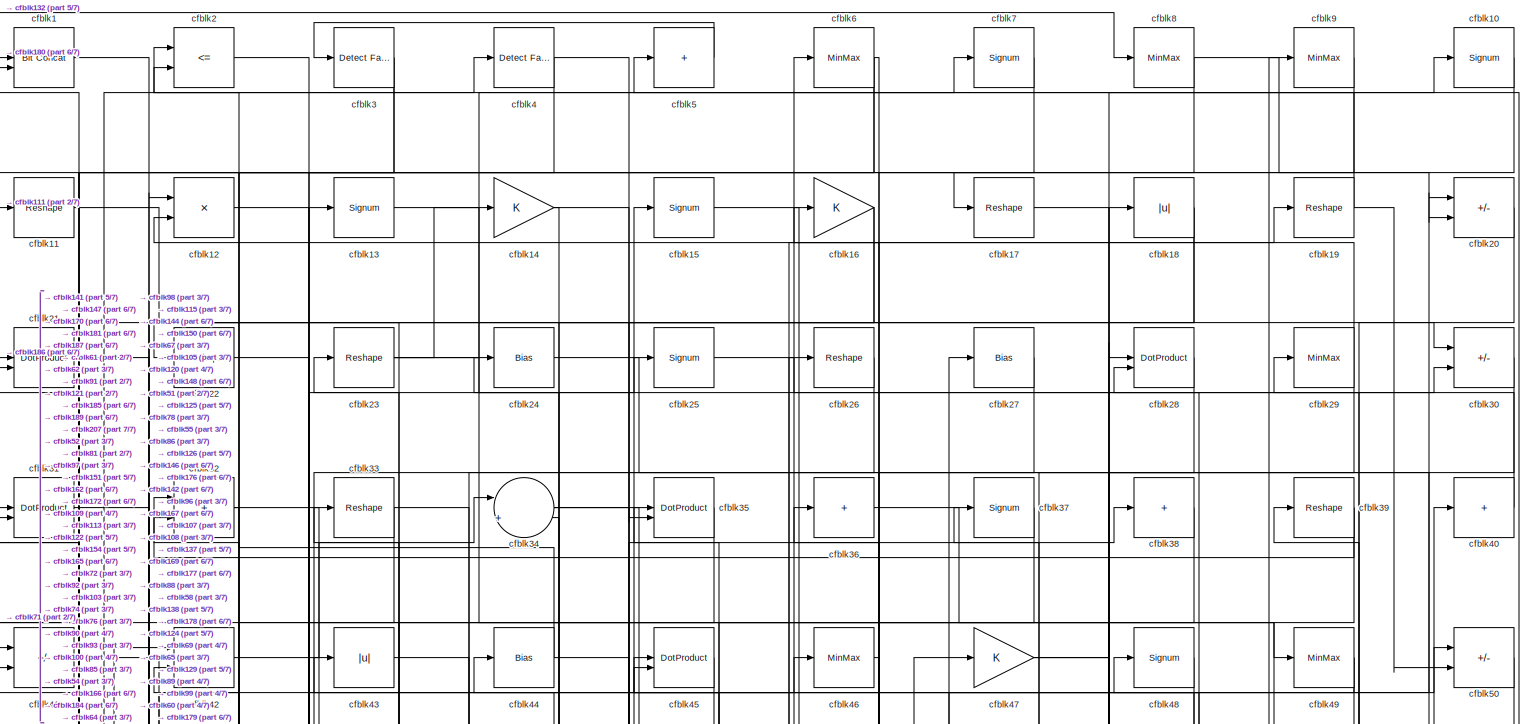
[diagram: root canvas - part 1/7, full width, top band]
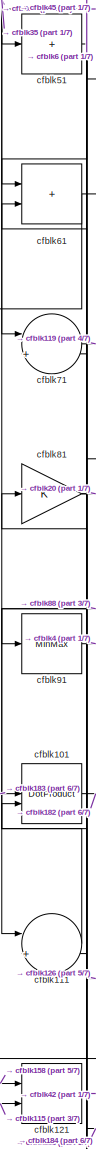
[diagram: root canvas - part 2/7, middle left region]
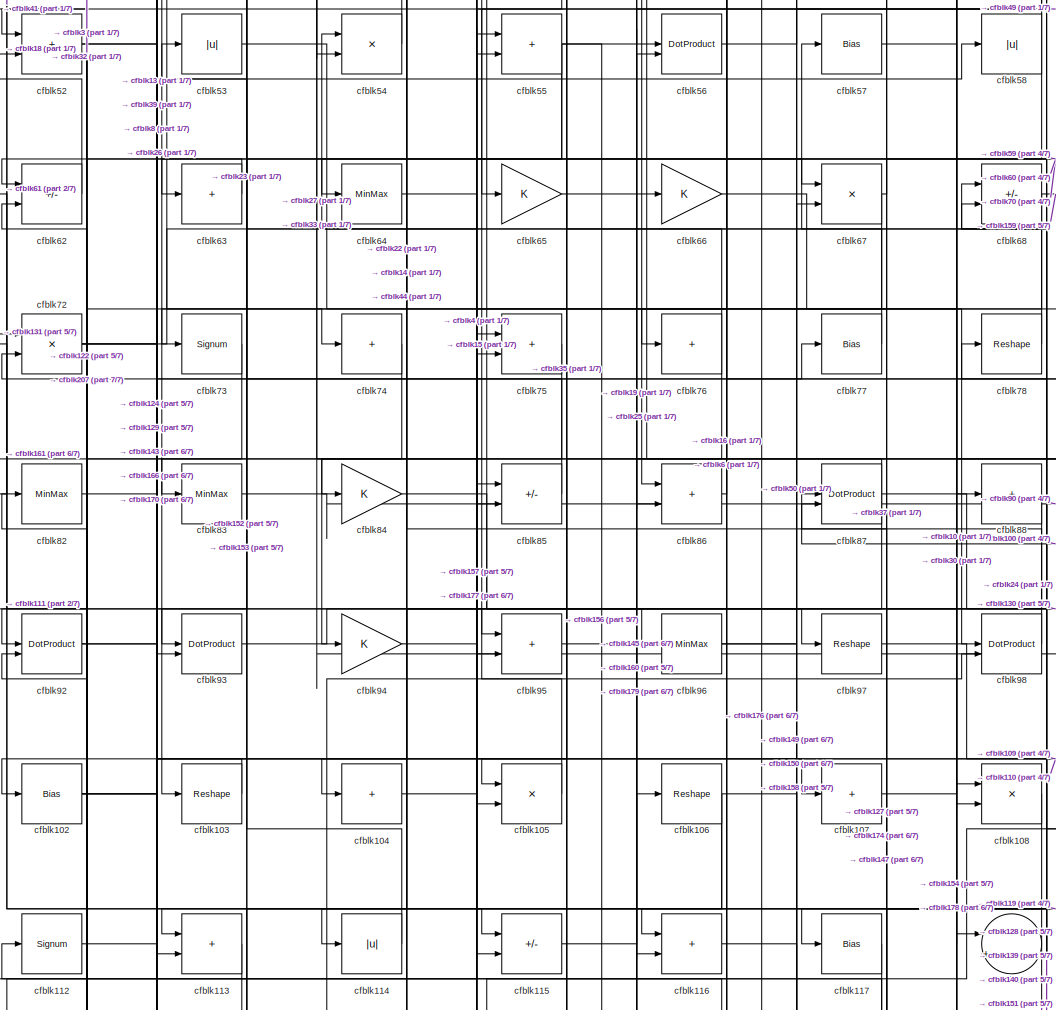
[diagram: root canvas - part 3/7, central region]
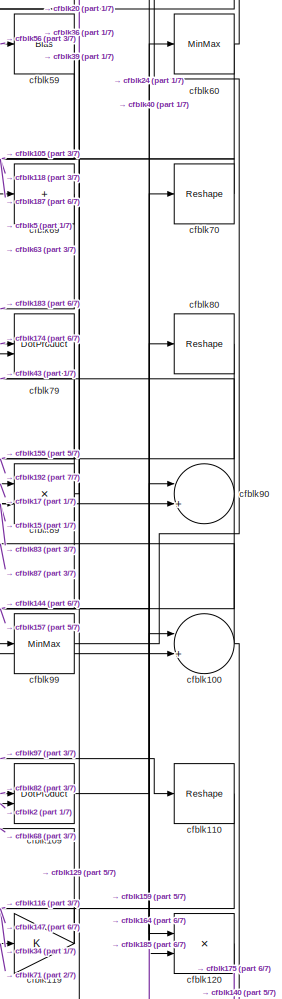
[diagram: root canvas - part 4/7, middle right region]
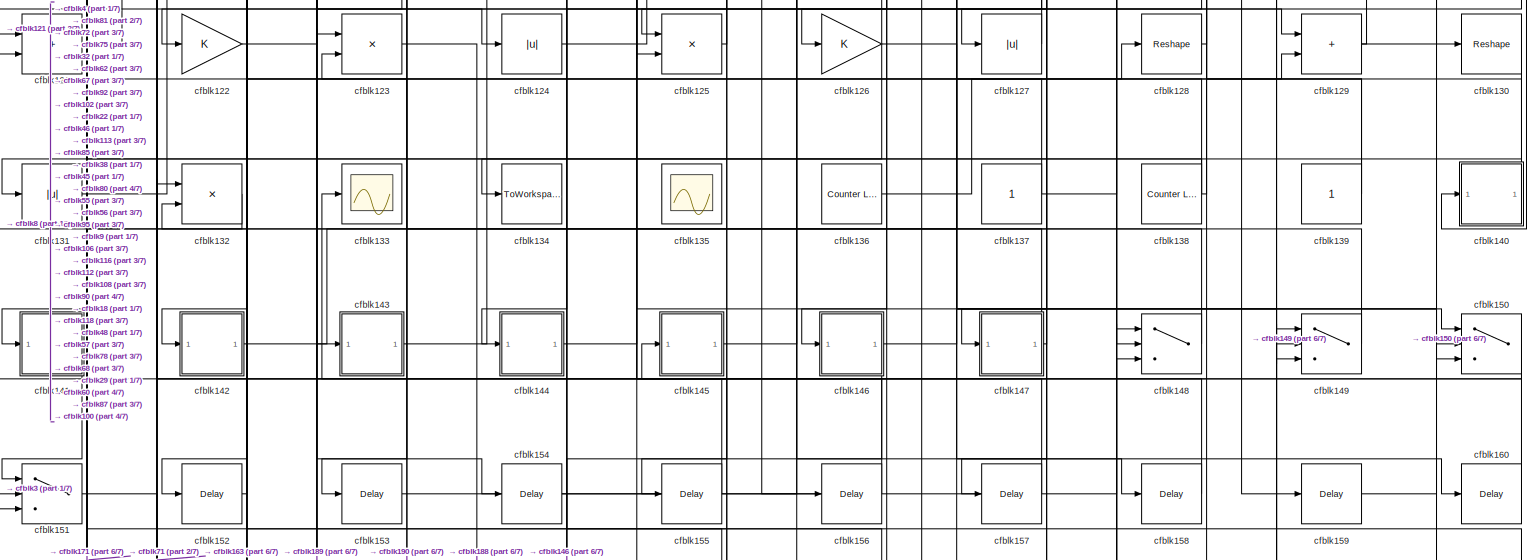
[diagram: root canvas - part 5/7, full width, bottom band]
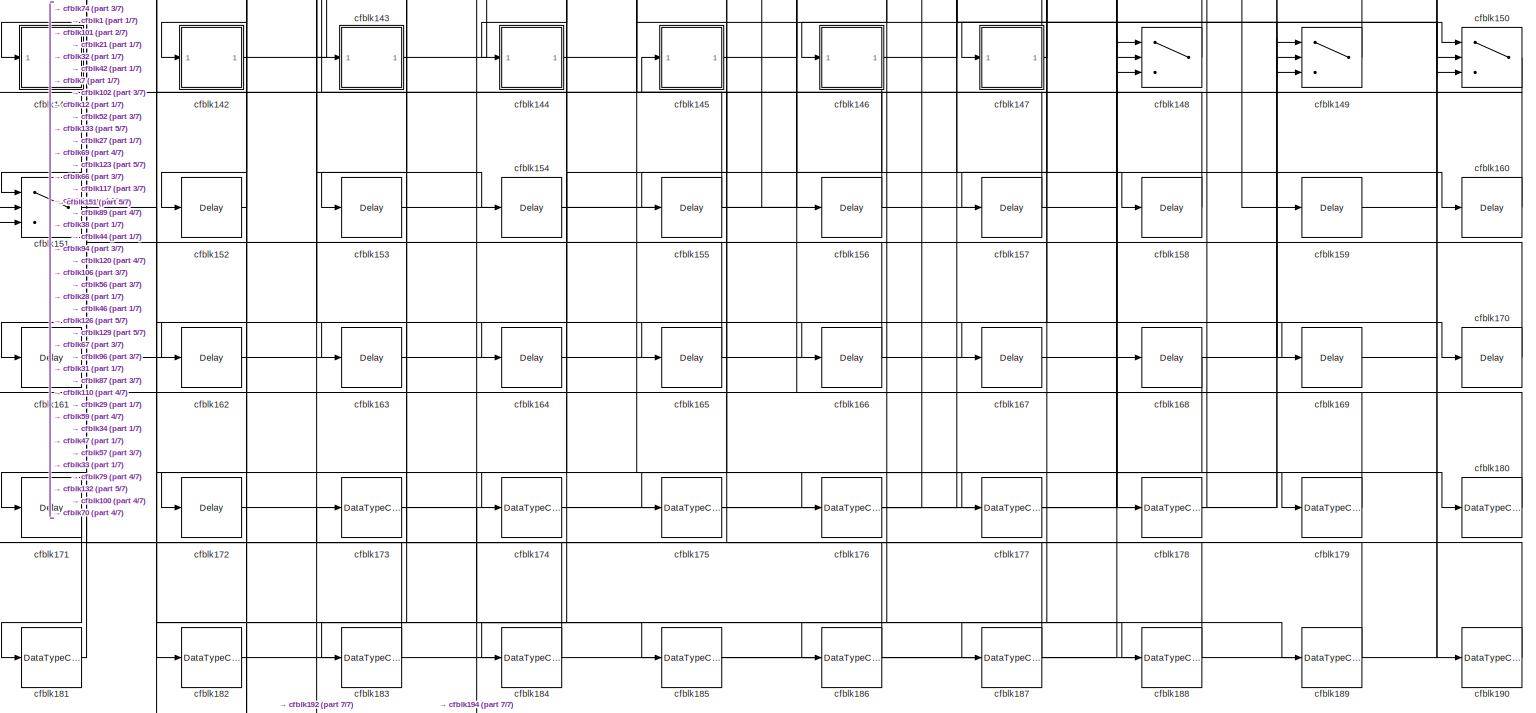
[diagram: root canvas - part 6/7, full width, bottom band]
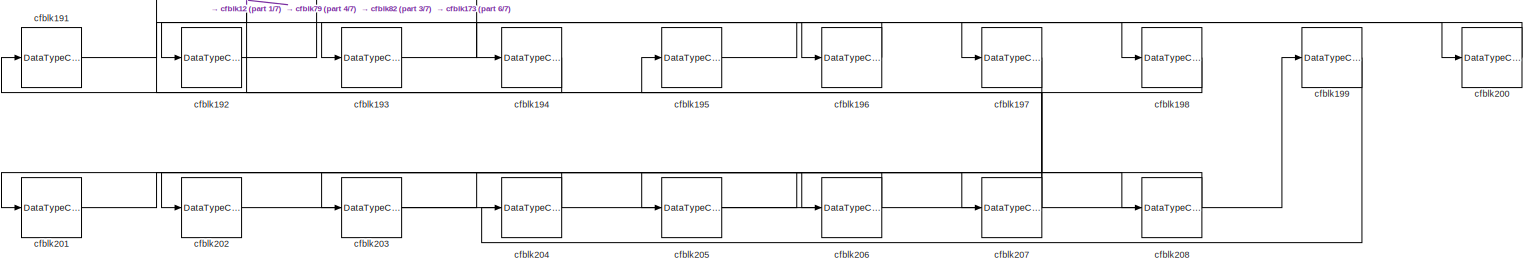
[diagram: root canvas - part 7/7, full width, bottom band]
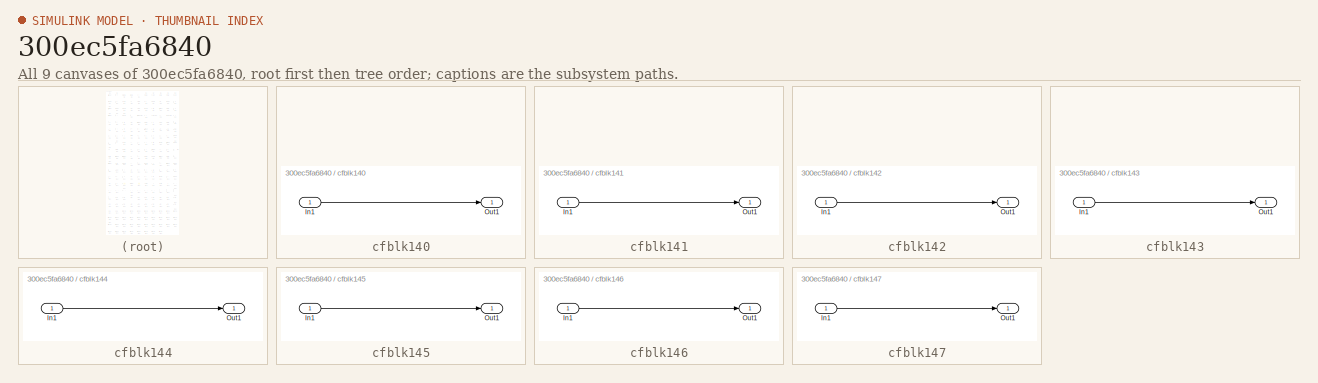
[diagram: thumbnail index - all 9 canvases of the model, root first then tree order]
MODEL slx_300ec5fa6840
KIND model
CONFIG AbsTol = auto
CONFIG EnableMultiTasking = off
CONFIG FixedStep = auto
CONFIG MaxStep = auto
CONFIG MinStep = auto
CONFIG RelTol = 1e-3
CONFIG SampleTimeConstraint = Unconstrained
CONFIG SolverName = VariableStepAuto
CONFIG StartTime = 0.0
CONFIG StopTime = 10.0
BLOCK [Reference] cfblk1  REF=hdlsllib/Logic and Bit
Operations/Bit Concat
  SourceBlock = hdlsllib/Logic and Bit\nOperations/Bit Concat
  SourceType = Bit Concat
BLOCK [Signum] cfblk10
BLOCK [Sum] cfblk100
  Inputs = |++
BLOCK [DotProduct] cfblk101
  OutDataTypeStr = Inherit: Inherit via internal rule
BLOCK [Bias] cfblk102
  Bias = 0.0
  SaturateOnIntegerOverflow = off
BLOCK [Reshape] cfblk103
BLOCK [Sum] cfblk104
  IconShape = rectangular
  Inputs = +
BLOCK [Product] cfblk105
  Inputs = */
  RndMeth = Zero
  SaturateOnIntegerOverflow = on
BLOCK [Reshape] cfblk106
BLOCK [Sum] cfblk107
  IconShape = rectangular
  Inputs = +
BLOCK [Product] cfblk108
  Inputs = */
  RndMeth = Zero
  SaturateOnIntegerOverflow = on
BLOCK [DotProduct] cfblk109
  OutDataTypeStr = Inherit: Inherit via internal rule
BLOCK [Reshape] cfblk11
BLOCK [Reshape] cfblk110
BLOCK [Sum] cfblk111
  Inputs = |++
BLOCK [Signum] cfblk112
BLOCK [Sum] cfblk113
  IconShape = rectangular
BLOCK [Abs] cfblk114
  SaturateOnIntegerOverflow = off
BLOCK [Sum] cfblk115
  IconShape = rectangular
  Inputs = +-
BLOCK [Sum] cfblk116
  IconShape = rectangular
BLOCK [Bias] cfblk117
  Bias = 0.0
  SaturateOnIntegerOverflow = off
BLOCK [Sum] cfblk118
  Inputs = |++
BLOCK [Gain] cfblk119
BLOCK [Product] cfblk12
  Inputs = */
  RndMeth = Zero
  SaturateOnIntegerOverflow = on
BLOCK [Product] cfblk120
  Inputs = */
  RndMeth = Zero
  SaturateOnIntegerOverflow = on
BLOCK [Sum] cfblk121
  IconShape = rectangular
BLOCK [Gain] cfblk122
BLOCK [Product] cfblk123
  Inputs = */
  RndMeth = Zero
  SaturateOnIntegerOverflow = on
BLOCK [Abs] cfblk124
  SaturateOnIntegerOverflow = off
BLOCK [Product] cfblk125
  Inputs = */
  RndMeth = Zero
  SaturateOnIntegerOverflow = on
BLOCK [Gain] cfblk126
BLOCK [Abs] cfblk127
  SaturateOnIntegerOverflow = off
BLOCK [Reshape] cfblk128
BLOCK [Sum] cfblk129
  IconShape = rectangular
BLOCK [Signum] cfblk13
BLOCK [Reshape] cfblk130
BLOCK [Abs] cfblk131
  SaturateOnIntegerOverflow = off
BLOCK [Product] cfblk132
  Inputs = */
  RndMeth = Zero
  SaturateOnIntegerOverflow = on
BLOCK [Scope] cfblk133
  Floating = off
  NumInputPorts = 1
  ScopeSpecificationString = Simulink.scopes.TimeScopeBlockCfg('CurrentConfiguration', extmgr.ConfigurationSet(extmgr.Configuration('Core','General UI',true),extmgr.Configuration('Core','Source UI',true),extmgr.Configuration('Sources','WiredSimulink',true,'DataLoggingVariableName','ScopeData2','DataLoggingSaveFormat','Array','DataLoggingLimitDataPoints',true,'DataLoggingDecimation','1'),extmgr.Configuration('Visuals','Time Do...<+868ch>
BLOCK [ToWorkspace] cfblk134
  MaxDataPoints = inf
  SampleTime = -1
  SaveFormat = Timeseries
  VariableName = simout
BLOCK [Scope] cfblk135
  Floating = on
  NumInputPorts = 1
  ScopeSpecificationString = Simulink.scopes.TimeScopeBlockCfg('CurrentConfiguration', extmgr.ConfigurationSet(extmgr.Configuration('Core','General UI',true,'FigureColor',[0.156862745098039 0.156862745098039 0.156862745098039]),extmgr.Configuration('Core','Source UI',true),extmgr.Configuration('Sources','WiredSimulink',true,'DataLoggingVariableName','ScopeData1','DataLoggingSaveFormat','StructureWithTime','DataLoggingLimitDat...<+2713ch>
BLOCK [Reference] cfblk136  REF=hdlsllib/Sources/Counter
Limited
  SourceBlock = hdlsllib/Sources/Counter\nLimited
  SourceType = Counter Limited
BLOCK [Constant] cfblk137
  SampleTime = -1
BLOCK [Reference] cfblk138  REF=hdlsllib/Sources/Counter
Limited
  SourceBlock = hdlsllib/Sources/Counter\nLimited
  SourceType = Counter Limited
BLOCK [Constant] cfblk139
  SampleTime = -1
BLOCK [Gain] cfblk14
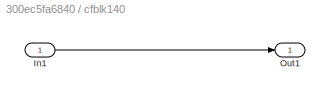
BLOCK [SubSystem] cfblk140
  LibrarySourceBlock = hdlsllib/Ports &\nSubsystems/Subsystem
BLOCK [Inport] cfblk140/In1
BLOCK [Outport] cfblk140/Out1
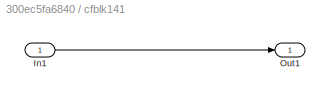
BLOCK [SubSystem] cfblk141
  LibrarySourceBlock = hdlsllib/Ports &\nSubsystems/Subsystem
BLOCK [Inport] cfblk141/In1
BLOCK [Outport] cfblk141/Out1
BLOCK [SubSystem] cfblk142
  LibrarySourceBlock = hdlsllib/Ports &\nSubsystems/Subsystem
BLOCK [Inport] cfblk142/In1
BLOCK [Outport] cfblk142/Out1
BLOCK [SubSystem] cfblk143
  LibrarySourceBlock = hdlsllib/Ports &\nSubsystems/Subsystem
BLOCK [Inport] cfblk143/In1
BLOCK [Outport] cfblk143/Out1
BLOCK [SubSystem] cfblk144
  LibrarySourceBlock = hdlsllib/Ports &\nSubsystems/Subsystem
BLOCK [Inport] cfblk144/In1
BLOCK [Outport] cfblk144/Out1
BLOCK [SubSystem] cfblk145
  LibrarySourceBlock = hdlsllib/Ports &\nSubsystems/Subsystem
BLOCK [Inport] cfblk145/In1
BLOCK [Outport] cfblk145/Out1
BLOCK [SubSystem] cfblk146
  LibrarySourceBlock = hdlsllib/Ports &\nSubsystems/Subsystem
BLOCK [Inport] cfblk146/In1
BLOCK [Outport] cfblk146/Out1
BLOCK [SubSystem] cfblk147
  LibrarySourceBlock = hdlsllib/Ports &\nSubsystems/Subsystem
BLOCK [Inport] cfblk147/In1
BLOCK [Outport] cfblk147/Out1
BLOCK [Switch] cfblk148
  InputSameDT = off
  SaturateOnIntegerOverflow = off
BLOCK [Switch] cfblk149
  InputSameDT = off
  SaturateOnIntegerOverflow = off
BLOCK [Signum] cfblk15
BLOCK [Switch] cfblk150
  InputSameDT = off
  SaturateOnIntegerOverflow = off
BLOCK [Switch] cfblk151
  InputSameDT = off
  SaturateOnIntegerOverflow = off
BLOCK [Delay] cfblk152
  InputPortMap = u0
  SampleTime = 1
BLOCK [Delay] cfblk153
  InputPortMap = u0
  SampleTime = 1
BLOCK [Delay] cfblk154
  InputPortMap = u0
  SampleTime = 1
BLOCK [Delay] cfblk155
  InputPortMap = u0
  SampleTime = 1
BLOCK [Delay] cfblk156
  InputPortMap = u0
  SampleTime = 1
BLOCK [Delay] cfblk157
  InputPortMap = u0
  SampleTime = 1
BLOCK [Delay] cfblk158
  InputPortMap = u0
  SampleTime = 1
BLOCK [Delay] cfblk159
  InputPortMap = u0
  SampleTime = 1
BLOCK [Gain] cfblk16
BLOCK [Delay] cfblk160
  InputPortMap = u0
  SampleTime = 1
BLOCK [Delay] cfblk161
  InputPortMap = u0
  SampleTime = 1
BLOCK [Delay] cfblk162
  InputPortMap = u0
  SampleTime = 1
BLOCK [Delay] cfblk163
  InputPortMap = u0
  SampleTime = 1
BLOCK [Delay] cfblk164
  InputPortMap = u0
  SampleTime = 1
BLOCK [Delay] cfblk165
  InputPortMap = u0
  SampleTime = 1
BLOCK [Delay] cfblk166
  InputPortMap = u0
  SampleTime = 1
BLOCK [Delay] cfblk167
  InputPortMap = u0
  SampleTime = 1
BLOCK [Delay] cfblk168
  InputPortMap = u0
  SampleTime = 1
BLOCK [Delay] cfblk169
  InputPortMap = u0
  SampleTime = 1
BLOCK [Reshape] cfblk17
BLOCK [Delay] cfblk170
  InputPortMap = u0
  SampleTime = 1
BLOCK [Delay] cfblk171
  InputPortMap = u0
  SampleTime = 1
BLOCK [Delay] cfblk172
  InputPortMap = u0
  SampleTime = 1
BLOCK [DataTypeConversion] cfblk173
  RndMeth = Floor
  SaturateOnIntegerOverflow = off
BLOCK [DataTypeConversion] cfblk174
  OutDataTypeStr = uint8
  RndMeth = Floor
  SaturateOnIntegerOverflow = off
BLOCK [DataTypeConversion] cfblk175
  OutDataTypeStr = uint8
  RndMeth = Floor
  SaturateOnIntegerOverflow = off
BLOCK [DataTypeConversion] cfblk176
  RndMeth = Floor
  SaturateOnIntegerOverflow = off
BLOCK [DataTypeConversion] cfblk177
  OutDataTypeStr = uint8
  RndMeth = Floor
  SaturateOnIntegerOverflow = off
BLOCK [DataTypeConversion] cfblk178
  OutDataTypeStr = uint8
  RndMeth = Floor
  SaturateOnIntegerOverflow = off
BLOCK [DataTypeConversion] cfblk179
  OutDataTypeStr = uint8
  RndMeth = Floor
  SaturateOnIntegerOverflow = off
BLOCK [Abs] cfblk18
  SaturateOnIntegerOverflow = off
BLOCK [DataTypeConversion] cfblk180
  OutDataTypeStr = uint8
  RndMeth = Floor
  SaturateOnIntegerOverflow = off
BLOCK [DataTypeConversion] cfblk181
  OutDataTypeStr = uint8
  RndMeth = Floor
  SaturateOnIntegerOverflow = off
BLOCK [DataTypeConversion] cfblk182
  OutDataTypeStr = uint8
  RndMeth = Floor
  SaturateOnIntegerOverflow = off
BLOCK [DataTypeConversion] cfblk183
  OutDataTypeStr = uint8
  RndMeth = Floor
  SaturateOnIntegerOverflow = off
BLOCK [DataTypeConversion] cfblk184
  OutDataTypeStr = uint8
  RndMeth = Floor
  SaturateOnIntegerOverflow = off
BLOCK [DataTypeConversion] cfblk185
  OutDataTypeStr = uint8
  RndMeth = Floor
  SaturateOnIntegerOverflow = off
BLOCK [DataTypeConversion] cfblk186
  OutDataTypeStr = uint8
  RndMeth = Floor
  SaturateOnIntegerOverflow = off
BLOCK [DataTypeConversion] cfblk187
  OutDataTypeStr = uint8
  RndMeth = Floor
  SaturateOnIntegerOverflow = off
BLOCK [DataTypeConversion] cfblk188
  OutDataTypeStr = uint8
  RndMeth = Floor
  SaturateOnIntegerOverflow = off
BLOCK [DataTypeConversion] cfblk189
  OutDataTypeStr = uint8
  RndMeth = Floor
  SaturateOnIntegerOverflow = off
BLOCK [Reshape] cfblk19
BLOCK [DataTypeConversion] cfblk190
  OutDataTypeStr = uint8
  RndMeth = Floor
  SaturateOnIntegerOverflow = off
BLOCK [DataTypeConversion] cfblk191
  RndMeth = Floor
  SaturateOnIntegerOverflow = off
BLOCK [DataTypeConversion] cfblk192
  OutDataTypeStr = uint8
  RndMeth = Floor
  SaturateOnIntegerOverflow = off
BLOCK [DataTypeConversion] cfblk193
  RndMeth = Floor
  SaturateOnIntegerOverflow = off
BLOCK [DataTypeConversion] cfblk194
  OutDataTypeStr = uint8
  RndMeth = Floor
  SaturateOnIntegerOverflow = off
BLOCK [DataTypeConversion] cfblk195
  RndMeth = Floor
  SaturateOnIntegerOverflow = off
BLOCK [DataTypeConversion] cfblk196
  OutDataTypeStr = uint8
  RndMeth = Floor
  SaturateOnIntegerOverflow = off
BLOCK [DataTypeConversion] cfblk197
  RndMeth = Floor
  SaturateOnIntegerOverflow = off
BLOCK [DataTypeConversion] cfblk198
  OutDataTypeStr = uint8
  RndMeth = Floor
  SaturateOnIntegerOverflow = off
BLOCK [DataTypeConversion] cfblk199
  RndMeth = Floor
  SaturateOnIntegerOverflow = off
BLOCK [RelationalOperator] cfblk2
  InputSameDT = off
  Operator = <=
  OutDataTypeStr = boolean
BLOCK [Sum] cfblk20
  IconShape = rectangular
  Inputs = +-
BLOCK [DataTypeConversion] cfblk200
  OutDataTypeStr = uint8
  RndMeth = Floor
  SaturateOnIntegerOverflow = off
BLOCK [DataTypeConversion] cfblk201
  RndMeth = Floor
  SaturateOnIntegerOverflow = off
BLOCK [DataTypeConversion] cfblk202
  OutDataTypeStr = uint8
  RndMeth = Floor
  SaturateOnIntegerOverflow = off
BLOCK [DataTypeConversion] cfblk203
  RndMeth = Floor
  SaturateOnIntegerOverflow = off
BLOCK [DataTypeConversion] cfblk204
  OutDataTypeStr = uint8
  RndMeth = Floor
  SaturateOnIntegerOverflow = off
BLOCK [DataTypeConversion] cfblk205
  RndMeth = Floor
  SaturateOnIntegerOverflow = off
BLOCK [DataTypeConversion] cfblk206
  OutDataTypeStr = uint8
  RndMeth = Floor
  SaturateOnIntegerOverflow = off
BLOCK [DataTypeConversion] cfblk207
  RndMeth = Floor
  SaturateOnIntegerOverflow = off
BLOCK [DataTypeConversion] cfblk208
  OutDataTypeStr = uint8
  RndMeth = Floor
  SaturateOnIntegerOverflow = off
BLOCK [DotProduct] cfblk21
  OutDataTypeStr = Inherit: Inherit via internal rule
BLOCK [Reshape] cfblk22
BLOCK [Reshape] cfblk23
BLOCK [Bias] cfblk24
  Bias = 0.0
  SaturateOnIntegerOverflow = off
BLOCK [Signum] cfblk25
BLOCK [Reshape] cfblk26
BLOCK [Bias] cfblk27
  Bias = 0.0
  SaturateOnIntegerOverflow = off
BLOCK [DotProduct] cfblk28
  OutDataTypeStr = Inherit: Inherit via internal rule
BLOCK [MinMax] cfblk29
BLOCK [Reference] cfblk3  REF=hdlsllib/Logic and Bit
Operations/Detect Fall
Nonpositive
  SourceBlock = hdlsllib/Logic and Bit\nOperations/Detect Fall\nNonpositive
  SourceType = Detect Fall Nonpositive
BLOCK [Sum] cfblk30
  IconShape = rectangular
  Inputs = +-
BLOCK [DotProduct] cfblk31
  OutDataTypeStr = Inherit: Inherit via internal rule
BLOCK [Sum] cfblk32
  IconShape = rectangular
BLOCK [Reshape] cfblk33
BLOCK [Sum] cfblk34
  Inputs = |++
BLOCK [DotProduct] cfblk35
  OutDataTypeStr = Inherit: Inherit via internal rule
BLOCK [Sum] cfblk36
  IconShape = rectangular
  Inputs = +
BLOCK [Signum] cfblk37
BLOCK [Sum] cfblk38
  IconShape = rectangular
  Inputs = +
BLOCK [Reshape] cfblk39
BLOCK [Reference] cfblk4  REF=hdlsllib/Logic and Bit
Operations/Detect Fall
Nonpositive
  SourceBlock = hdlsllib/Logic and Bit\nOperations/Detect Fall\nNonpositive
  SourceType = Detect Fall Nonpositive
BLOCK [Sum] cfblk40
  IconShape = rectangular
  Inputs = +
BLOCK [Sum] cfblk41
  IconShape = rectangular
  Inputs = +-
BLOCK [Product] cfblk42
  Inputs = */
  RndMeth = Zero
  SaturateOnIntegerOverflow = on
BLOCK [Abs] cfblk43
  SaturateOnIntegerOverflow = off
BLOCK [Bias] cfblk44
  Bias = 0.0
  SaturateOnIntegerOverflow = off
BLOCK [DotProduct] cfblk45
  OutDataTypeStr = Inherit: Inherit via internal rule
BLOCK [MinMax] cfblk46
BLOCK [Gain] cfblk47
BLOCK [Signum] cfblk48
BLOCK [MinMax] cfblk49
BLOCK [Sum] cfblk5
  IconShape = rectangular
  Inputs = +
BLOCK [Sum] cfblk50
  IconShape = rectangular
  Inputs = +-
BLOCK [Sum] cfblk51
  IconShape = rectangular
  Inputs = +
BLOCK [Sum] cfblk52
  IconShape = rectangular
BLOCK [Abs] cfblk53
  SaturateOnIntegerOverflow = off
BLOCK [Product] cfblk54
  Inputs = */
  RndMeth = Zero
  SaturateOnIntegerOverflow = on
BLOCK [Sum] cfblk55
  IconShape = rectangular
BLOCK [DotProduct] cfblk56
  OutDataTypeStr = Inherit: Inherit via internal rule
BLOCK [Bias] cfblk57
  Bias = 0.0
  SaturateOnIntegerOverflow = off
BLOCK [Abs] cfblk58
  SaturateOnIntegerOverflow = off
BLOCK [Bias] cfblk59
  Bias = 0.0
  SaturateOnIntegerOverflow = off
BLOCK [MinMax] cfblk6
BLOCK [MinMax] cfblk60
BLOCK [Sum] cfblk61
  IconShape = rectangular
BLOCK [Sum] cfblk62
  IconShape = rectangular
  Inputs = +-
BLOCK [Sum] cfblk63
  IconShape = rectangular
  Inputs = +
BLOCK [MinMax] cfblk64
BLOCK [Gain] cfblk65
BLOCK [Gain] cfblk66
BLOCK [Product] cfblk67
  Inputs = */
  RndMeth = Zero
  SaturateOnIntegerOverflow = on
BLOCK [Sum] cfblk68
  IconShape = rectangular
  Inputs = +-
BLOCK [Sum] cfblk69
  IconShape = rectangular
  Inputs = +
BLOCK [Signum] cfblk7
BLOCK [Reshape] cfblk70
BLOCK [Sum] cfblk71
  Inputs = |++
BLOCK [Product] cfblk72
  Inputs = */
  RndMeth = Zero
  SaturateOnIntegerOverflow = on
BLOCK [Signum] cfblk73
BLOCK [Sum] cfblk74
  IconShape = rectangular
  Inputs = +
BLOCK [Sum] cfblk75
  IconShape = rectangular
BLOCK [Sum] cfblk76
  IconShape = rectangular
  Inputs = +
BLOCK [Bias] cfblk77
  Bias = 0.0
  SaturateOnIntegerOverflow = off
BLOCK [Reshape] cfblk78
BLOCK [DotProduct] cfblk79
  OutDataTypeStr = Inherit: Inherit via internal rule
BLOCK [MinMax] cfblk8
BLOCK [Reshape] cfblk80
BLOCK [Gain] cfblk81
BLOCK [MinMax] cfblk82
BLOCK [MinMax] cfblk83
BLOCK [Gain] cfblk84
BLOCK [Sum] cfblk85
  IconShape = rectangular
  Inputs = +-
BLOCK [Sum] cfblk86
  IconShape = rectangular
BLOCK [DotProduct] cfblk87
  OutDataTypeStr = Inherit: Inherit via internal rule
BLOCK [Sum] cfblk88
  IconShape = rectangular
  Inputs = +
BLOCK [Product] cfblk89
  Inputs = */
  RndMeth = Zero
  SaturateOnIntegerOverflow = on
BLOCK [MinMax] cfblk9
BLOCK [Sum] cfblk90
  Inputs = |++
BLOCK [MinMax] cfblk91
BLOCK [DotProduct] cfblk92
  OutDataTypeStr = Inherit: Inherit via internal rule
BLOCK [DotProduct] cfblk93
  OutDataTypeStr = Inherit: Inherit via internal rule
BLOCK [Gain] cfblk94
BLOCK [Sum] cfblk95
  IconShape = rectangular
BLOCK [MinMax] cfblk96
BLOCK [Reshape] cfblk97
BLOCK [DotProduct] cfblk98
  OutDataTypeStr = Inherit: Inherit via internal rule
BLOCK [MinMax] cfblk99
NET cfblk100:1 -> cfblk140:1, cfblk87:2
LINE cfblk101:1 -> cfblk182:1
NET cfblk102:1 -> cfblk124:1, cfblk129:1, cfblk170:1
LINE cfblk103:1 -> cfblk102:1
LINE cfblk104:1 -> cfblk75:2
LINE cfblk105:1 -> cfblk15:1
NET cfblk106:1 -> cfblk113:1, cfblk149:3, cfblk153:1
LINE cfblk107:1 -> cfblk10:1
LINE cfblk108:1 -> cfblk127:1
LINE cfblk109:1 -> cfblk80:1
LINE cfblk10:1 -> cfblk17:1
LINE cfblk110:1 -> cfblk147:1
LINE cfblk111:1 -> cfblk11:1
LINE cfblk112:1 -> cfblk77:1
LINE cfblk113:1 -> cfblk152:1
LINE cfblk114:1 -> cfblk53:1
LINE cfblk115:1 -> cfblk98:2
LINE cfblk116:1 -> cfblk158:1
LINE cfblk117:1 -> cfblk174:1
NET cfblk118:1 -> cfblk117:1, cfblk151:3
NET cfblk119:1 -> cfblk116:1, cfblk68:2
LINE cfblk11:1 -> cfblk30:1
LINE cfblk120:1 -> cfblk175:1
LINE cfblk121:1 -> cfblk42:1
LINE cfblk122:1 -> cfblk46:1
LINE cfblk123:1 -> cfblk188:1
LINE cfblk124:1 -> cfblk9:1
LINE cfblk125:1 -> cfblk45:1
NET cfblk126:1 -> cfblk150:1, cfblk171:1, cfblk71:2
LINE cfblk127:1 -> cfblk112:1
LINE cfblk128:1 -> cfblk57:1
NET cfblk129:1 -> cfblk29:1, cfblk60:1
LINE cfblk12:1 -> cfblk165:1
LINE cfblk130:1 -> cfblk131:1
LINE cfblk131:1 -> cfblk75:1
LINE cfblk132:1 -> cfblk8:1
LINE cfblk136:1 -> cfblk128:1
NET cfblk137:1 -> cfblk18:1, cfblk32:1
NET cfblk138:1 -> cfblk134:1, cfblk48:1, cfblk81:1
NET cfblk139:1 -> cfblk68:1, cfblk92:2
LINE cfblk13:1 -> cfblk88:1
LINE cfblk140/In1:1 -> cfblk140/Out1:1
LINE cfblk140:1 -> cfblk78:1
LINE cfblk141/In1:1 -> cfblk141/Out1:1
LINE cfblk141:1 -> cfblk151:1
LINE cfblk142/In1:1 -> cfblk142/Out1:1
LINE cfblk142:1 -> cfblk27:1
LINE cfblk143/In1:1 -> cfblk143/Out1:1
LINE cfblk143:1 -> cfblk66:1
LINE cfblk144/In1:1 -> cfblk144/Out1:1
LINE cfblk144:1 -> cfblk38:1
LINE cfblk145/In1:1 -> cfblk145/Out1:1
LINE cfblk145:1 -> cfblk106:1
LINE cfblk146/In1:1 -> cfblk146/Out1:1
NET cfblk146:1 -> cfblk129:2, cfblk164:1
LINE cfblk147/In1:1 -> cfblk147/Out1:1
NET cfblk147:1 -> cfblk31:1, cfblk87:1
LINE cfblk148:1 -> cfblk33:1
LINE cfblk149:1 -> cfblk132:2
NET cfblk14:1 -> cfblk115:2, cfblk64:1
LINE cfblk150:1 -> cfblk133:1
LINE cfblk151:1 -> cfblk163:1
LINE cfblk152:1 -> cfblk62:2
LINE cfblk153:1 -> cfblk56:2
LINE cfblk154:1 -> cfblk108:1
LINE cfblk155:1 -> cfblk132:1
LINE cfblk156:1 -> cfblk85:1
LINE cfblk157:1 -> cfblk55:1
LINE cfblk158:1 -> cfblk121:1
LINE cfblk159:1 -> cfblk90:1
LINE cfblk15:1 -> cfblk89:2
LINE cfblk160:1 -> cfblk72:1
LINE cfblk161:1 -> cfblk148:1
LINE cfblk162:1 -> cfblk149:2
LINE cfblk163:1 -> cfblk149:1
LINE cfblk164:1 -> cfblk100:1
LINE cfblk165:1 -> cfblk42:2
LINE cfblk166:1 -> cfblk34:2
LINE cfblk167:1 -> cfblk180:1
LINE cfblk168:1 -> cfblk186:1
LINE cfblk169:1 -> cfblk190:1
NET cfblk16:1 -> cfblk184:1, cfblk35:2
LINE cfblk170:1 -> cfblk31:2
LINE cfblk171:1 -> cfblk181:1
LINE cfblk172:1 -> cfblk148:3
LINE cfblk173:1 -> cfblk194:1
LINE cfblk174:1 -> cfblk79:1
LINE cfblk175:1 -> cfblk79:2
NET cfblk176:1 -> cfblk47:1, cfblk67:2
LINE cfblk177:1 -> cfblk28:1
LINE cfblk178:1 -> cfblk28:2
LINE cfblk179:1 -> cfblk56:1
LINE cfblk17:1 -> cfblk89:1
LINE cfblk180:1 -> cfblk1:1
LINE cfblk181:1 -> cfblk1:2
LINE cfblk182:1 -> cfblk168:1
LINE cfblk183:1 -> cfblk101:1
LINE cfblk184:1 -> cfblk101:2
LINE cfblk185:1 -> cfblk70:1
LINE cfblk186:1 -> cfblk21:1
LINE cfblk187:1 -> cfblk21:2
LINE cfblk188:1 -> cfblk145:1
LINE cfblk189:1 -> cfblk123:1
NET cfblk18:1 -> cfblk41:1, cfblk52:2
LINE cfblk190:1 -> cfblk123:2
LINE cfblk191:1 -> cfblk196:1
LINE cfblk192:1 -> cfblk173:1
LINE cfblk193:1 -> cfblk198:1
LINE cfblk194:1 -> cfblk191:1
LINE cfblk195:1 -> cfblk200:1
LINE cfblk196:1 -> cfblk193:1
LINE cfblk197:1 -> cfblk202:1
LINE cfblk198:1 -> cfblk195:1
LINE cfblk199:1 -> cfblk204:1
NET cfblk19:1 -> cfblk2:2, cfblk50:2
LINE cfblk1:1 -> cfblk179:1
LINE cfblk200:1 -> cfblk197:1
LINE cfblk201:1 -> cfblk206:1
LINE cfblk202:1 -> cfblk199:1
LINE cfblk203:1 -> cfblk208:1
LINE cfblk204:1 -> cfblk201:1
LINE cfblk205:1 -> cfblk207:1
LINE cfblk206:1 -> cfblk203:1
NET cfblk207:1 -> cfblk12:1, cfblk82:1
LINE cfblk208:1 -> cfblk205:1
LINE cfblk20:1 -> cfblk99:1
LINE cfblk21:1 -> cfblk185:1
LINE cfblk22:1 -> cfblk154:1
NET cfblk23:1 -> cfblk14:1, cfblk30:2, cfblk7:1
LINE cfblk24:1 -> cfblk120:1
LINE cfblk25:1 -> cfblk86:1
LINE cfblk26:1 -> cfblk103:1
LINE cfblk27:1 -> cfblk54:2
LINE cfblk28:1 -> cfblk176:1
NET cfblk29:1 -> cfblk12:2, cfblk167:1
LINE cfblk2:1 -> cfblk109:2
LINE cfblk30:1 -> cfblk108:2
LINE cfblk31:1 -> cfblk189:1
NET cfblk32:1 -> cfblk162:1, cfblk74:1
NET cfblk33:1 -> cfblk172:1, cfblk85:2
NET cfblk34:1 -> cfblk120:2, cfblk148:2
LINE cfblk35:1 -> cfblk71:1
LINE cfblk36:1 -> cfblk69:1
LINE cfblk37:1 -> cfblk93:1
LINE cfblk38:1 -> cfblk125:1
NET cfblk39:1 -> cfblk32:2, cfblk93:2
NET cfblk3:1 -> cfblk151:2, cfblk52:1
LINE cfblk40:1 -> cfblk6:1
LINE cfblk41:1 -> cfblk97:1
LINE cfblk42:1 -> cfblk34:1
LINE cfblk43:1 -> cfblk100:2
NET cfblk44:1 -> cfblk150:3, cfblk2:1
LINE cfblk45:1 -> cfblk51:1
LINE cfblk46:1 -> cfblk146:1
NET cfblk47:1 -> cfblk169:1, cfblk49:1
LINE cfblk48:1 -> cfblk125:2
NET cfblk49:1 -> cfblk45:2, cfblk65:1
NET cfblk4:1 -> cfblk141:1, cfblk67:1
LINE cfblk50:1 -> cfblk86:2
LINE cfblk51:1 -> cfblk91:1
NET cfblk52:1 -> cfblk143:1, cfblk166:1
LINE cfblk53:1 -> cfblk98:1
LINE cfblk54:1 -> cfblk22:1
NET cfblk55:1 -> cfblk114:1, cfblk156:1, cfblk19:1, cfblk73:1
LINE cfblk56:1 -> cfblk59:1
LINE cfblk57:1 -> cfblk178:1
NET cfblk58:1 -> cfblk24:1, cfblk92:1
NET cfblk59:1 -> cfblk105:1, cfblk187:1
LINE cfblk5:1 -> cfblk3:1
NET cfblk60:1 -> cfblk118:2, cfblk5:1
NET cfblk61:1 -> cfblk115:1, cfblk121:2
LINE cfblk62:1 -> cfblk41:2
LINE cfblk63:1 -> cfblk62:1
LINE cfblk64:1 -> cfblk95:2
LINE cfblk65:1 -> cfblk26:1
LINE cfblk66:1 -> cfblk118:1
NET cfblk67:1 -> cfblk122:1, cfblk37:1
NET cfblk68:1 -> cfblk105:2, cfblk159:1
LINE cfblk69:1 -> cfblk183:1
NET cfblk6:1 -> cfblk111:2, cfblk61:1, cfblk76:1
LINE cfblk70:1 -> cfblk63:1
LINE cfblk71:1 -> cfblk119:1
NET cfblk72:1 -> cfblk25:1, cfblk55:2, cfblk58:1
LINE cfblk73:1 -> cfblk83:1
LINE cfblk74:1 -> cfblk161:1
LINE cfblk75:1 -> cfblk94:1
NET cfblk76:1 -> cfblk116:2, cfblk23:1
LINE cfblk77:1 -> cfblk54:1
LINE cfblk78:1 -> cfblk35:1
LINE cfblk79:1 -> cfblk192:1
LINE cfblk7:1 -> cfblk142:1
LINE cfblk80:1 -> cfblk155:1
NET cfblk81:1 -> cfblk20:1, cfblk61:2
LINE cfblk82:1 -> cfblk109:1
LINE cfblk83:1 -> cfblk90:2
LINE cfblk84:1 -> cfblk96:1
LINE cfblk85:1 -> cfblk72:2
LINE cfblk86:1 -> cfblk16:1
NET cfblk87:1 -> cfblk104:1, cfblk130:1, cfblk84:1
LINE cfblk88:1 -> cfblk111:1
NET cfblk89:1 -> cfblk144:1, cfblk36:1, cfblk39:1
NET cfblk8:1 -> cfblk113:2, cfblk20:2
NET cfblk90:1 -> cfblk157:1, cfblk43:1
LINE cfblk91:1 -> cfblk4:1
NET cfblk92:1 -> cfblk107:1, cfblk13:1
LINE cfblk93:1 -> cfblk95:1
LINE cfblk94:1 -> cfblk177:1
LINE cfblk95:1 -> cfblk160:1
NET cfblk96:1 -> cfblk150:2, cfblk50:1
LINE cfblk97:1 -> cfblk110:1
LINE cfblk98:1 -> cfblk44:1
LINE cfblk99:1 -> cfblk40:1
LINE cfblk9:1 -> cfblk126:1
note: NET lines group one-source signal fan-out (src -> all destinations, sorted); 1:1 wires keep LINE
